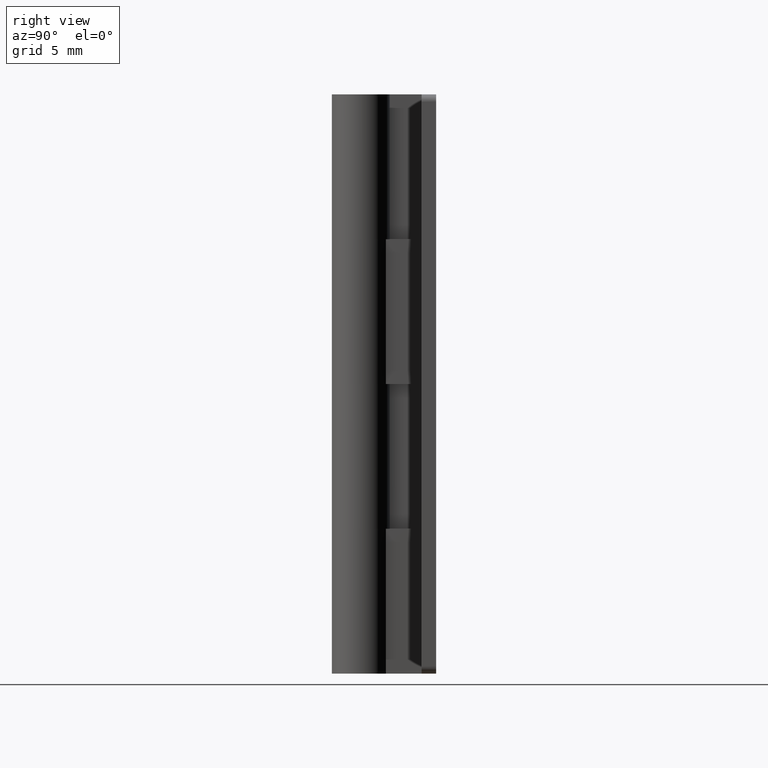
[diagram: clean part render]
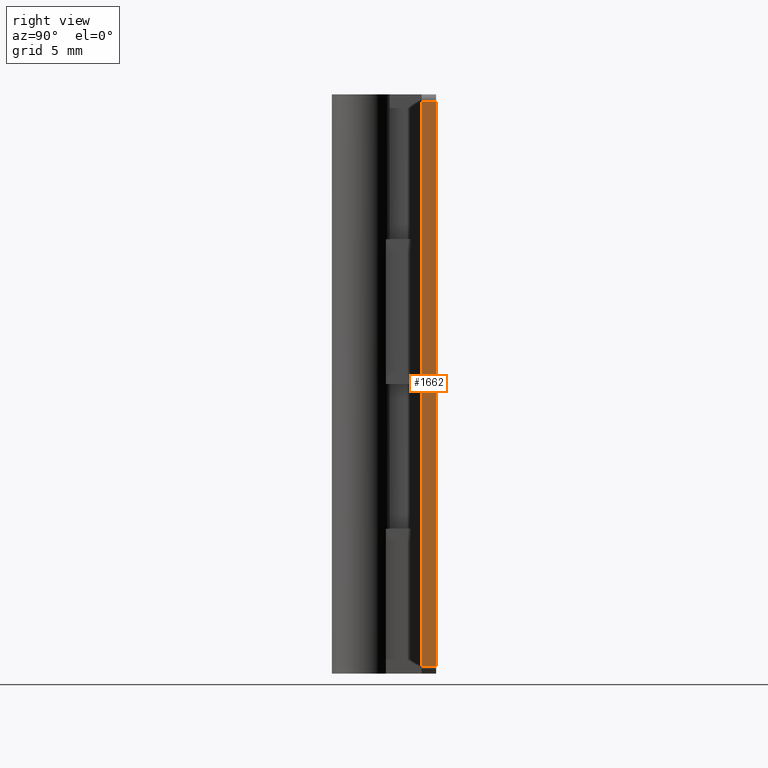
[diagram: same view with one face highlighted and labeled with its STEP entity id]
A machine part, right view. The second image highlights one B-rep face of the part: STEP entity #1662.
In plain terms, the highlighted face is a freeform B-spline surface patch.
Its self-contained STEP definition (entity closure, byte-faithful):
#1371=CARTESIAN_POINT('',(15.0,4.200001000000000,39.500008000000001));
#1372=VERTEX_POINT('',#1371);
#1388=CARTESIAN_POINT('',(15.0,5.200001000000000,39.500008000000001));
#1389=VERTEX_POINT('',#1388);
#1390=CARTESIAN_POINT('',(15.0,5.200001000000000,39.500008000000001));
#1391=CARTESIAN_POINT('',(15.0,4.200001000000000,39.500008000000001));
#1392=QUASI_UNIFORM_CURVE('',1,(#1390,#1391),.UNSPECIFIED.,.F.,.U.);
#1393=EDGE_CURVE('',#1389,#1372,#1392,.T.);
#1434=CARTESIAN_POINT('',(15.0,4.200001000000000,0.499999999999945));
#1435=VERTEX_POINT('',#1434);
#1456=CARTESIAN_POINT('',(15.0,5.200001000000000,0.499999999999945));
#1457=VERTEX_POINT('',#1456);
#1471=CARTESIAN_POINT('',(15.0,4.200001000000000,0.499999999999945));
#1472=CARTESIAN_POINT('',(15.0,5.200001000000000,0.499999999999945));
#1473=QUASI_UNIFORM_CURVE('',1,(#1471,#1472),.UNSPECIFIED.,.F.,.U.);
#1474=EDGE_CURVE('',#1435,#1457,#1473,.T.);
#1643=CARTESIAN_POINT('',(15.0,4.150050762772323,-1.448050324010473));
#1644=CARTESIAN_POINT('',(15.0,4.150050762772323,41.448059370072151));
#1645=CARTESIAN_POINT('',(15.0,5.249950736548662,-1.448050324010473));
#1646=CARTESIAN_POINT('',(15.0,5.249950736548662,41.448059370072151));
#1647=B_SPLINE_SURFACE_WITH_KNOTS('',1,1,((#1643,#1645),(#1644,#1646)),.UNSPECIFIED.,.F.,.F.,.U.,(2,2),(2,2),(0.0,42.896109694082632),(0.041708135643601,0.958291447123885),.UNSPECIFIED.);
#1648=CARTESIAN_POINT('',(15.0,4.200001000000000,39.500008000000001));
#1649=CARTESIAN_POINT('',(15.0,4.200001000000000,0.499999999999945));
#1650=QUASI_UNIFORM_CURVE('',1,(#1648,#1649),.UNSPECIFIED.,.F.,.U.);
#1651=EDGE_CURVE('',#1372,#1435,#1650,.T.);
#1652=ORIENTED_EDGE('',*,*,#1651,.T.);
#1653=ORIENTED_EDGE('',*,*,#1474,.T.);
#1654=CARTESIAN_POINT('',(15.0,5.200001000000000,39.500008000000001));
#1655=CARTESIAN_POINT('',(15.0,5.200001000000000,0.499999999999945));
#1656=QUASI_UNIFORM_CURVE('',1,(#1654,#1655),.UNSPECIFIED.,.F.,.U.);
#1657=EDGE_CURVE('',#1389,#1457,#1656,.T.);
#1658=ORIENTED_EDGE('',*,*,#1657,.F.);
#1659=ORIENTED_EDGE('',*,*,#1393,.T.);
#1660=EDGE_LOOP('',(#1652,#1653,#1658,#1659));
#1661=FACE_OUTER_BOUND('',#1660,.T.);
#1662=ADVANCED_FACE('',(#1661),#1647,.F.);